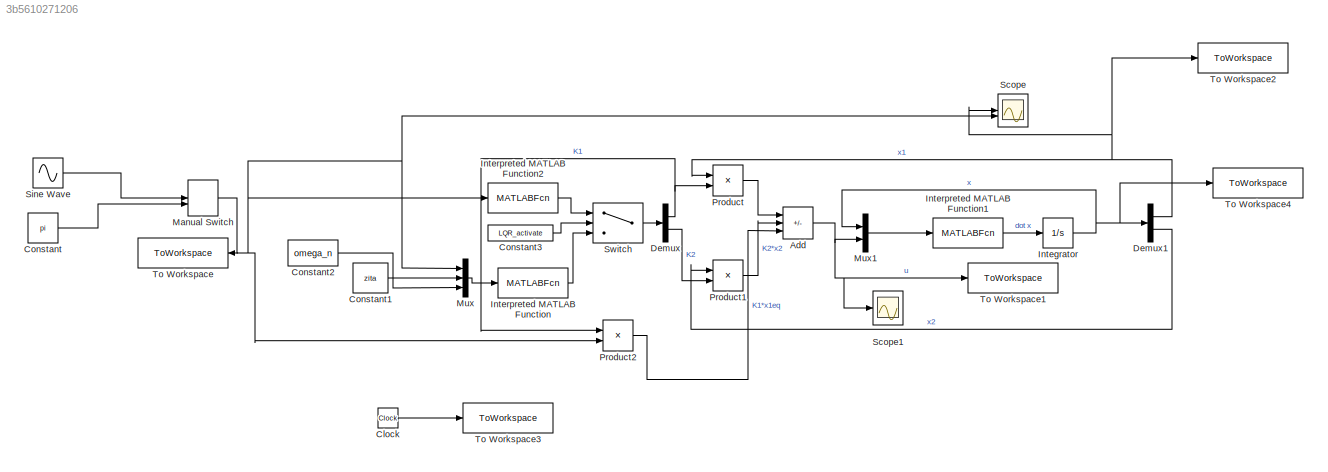
MODEL slx_3b5610271206
KIND model
CONFIG AbsTol = auto
CONFIG EnableMultiTasking = off
CONFIG FixedStep = auto
CONFIG MaxStep = auto
CONFIG MinStep = auto
CONFIG RelTol = 1e-7
CONFIG SampleTimeConstraint = Unconstrained
CONFIG SolverName = VariableStepAuto
CONFIG StartTime = 0.0
CONFIG StopTime = 50
BLOCK [Sum] Add
  IconShape = rectangular
  Inputs = --+
BLOCK [Clock] Clock
BLOCK [Constant] Constant
  Value = pi
BLOCK [Constant] Constant1
  Value = zita
BLOCK [Constant] Constant2
  Value = omega_n
BLOCK [Constant] Constant3
  Value = LQR_activate
BLOCK [Demux] Demux
  Outputs = 2
BLOCK [Demux] Demux1
  Outputs = 2
BLOCK [Integrator] Integrator
BLOCK [MATLABFcn] Interpreted MATLAB Function
  MATLABFcn = GS_compute_gains_PP
  OutputDimensions = 2
BLOCK [MATLABFcn] Interpreted MATLAB Function1
  MATLABFcn = GS_sys
  OutputDimensions = 2
BLOCK [MATLABFcn] Interpreted MATLAB Function2
  MATLABFcn = GS_compute_gains_LQR
  OutputDimensions = 2
BLOCK [ManualSwitch] Manual Switch
  CurrentSetting = 0
BLOCK [Mux] Mux
  DisplayOption = bar
  Inputs = 3
BLOCK [Mux] Mux1
  DisplayOption = bar
  Inputs = 2
BLOCK [Product] Product
BLOCK [Product] Product1
BLOCK [Product] Product2
BLOCK [Scope] Scope
  Floating = off
  NumInputPorts = 2
  ScopeSpecificationString = Simulink.scopes.TimeScopeBlockCfg('CurrentConfiguration', extmgr.ConfigurationSet(extmgr.Configuration('Core','General UI',true),extmgr.Configuration('Core','Source UI',true),extmgr.Configuration('Sources','WiredSimulink',true,'DataLoggingVariableName','ScopeData1'),extmgr.Configuration('Visuals','Time Domain',true,'SerializedDisplays',{struct('MinYLimReal','-3.92491','MaxYLimReal','3.92491','YLab...<+1419ch>
BLOCK [Scope] Scope1
  Floating = off
  NumInputPorts = 1
  ScopeSpecificationString = Simulink.scopes.TimeScopeBlockCfg('CurrentConfiguration', extmgr.ConfigurationSet(extmgr.Configuration('Core','General UI',true),extmgr.Configuration('Core','Source UI',true),extmgr.Configuration('Sources','WiredSimulink',true),extmgr.Configuration('Visuals','Time Domain',true,'SerializedDisplays',{struct('MinYLimReal','-13.8979','MaxYLimReal','38.36756','YLabelReal','','MinYLimMag','0.00000','Max...<+1356ch>
BLOCK [Sin] Sine Wave
  Amplitude = 3.14
  SampleTime = 0
BLOCK [Switch] Switch
  Criteria = u2 > Threshold
  InputSameDT = off
  SaturateOnIntegerOverflow = off
  Threshold = 0.5
BLOCK [ToWorkspace] To Workspace
  FixptAsFi = on
  MaxDataPoints = inf
  SampleTime = -1
  VariableName = r
BLOCK [ToWorkspace] To Workspace1
  FixptAsFi = on
  MaxDataPoints = inf
  SampleTime = -1
  VariableName = u
BLOCK [ToWorkspace] To Workspace2
  FixptAsFi = on
  MaxDataPoints = inf
  SampleTime = -1
  VariableName = y
BLOCK [ToWorkspace] To Workspace3
  FixptAsFi = on
  MaxDataPoints = inf
  SampleTime = -1
  VariableName = t
BLOCK [ToWorkspace] To Workspace4
  FixptAsFi = on
  MaxDataPoints = inf
  SampleTime = -1
  VariableName = x
NET Add:1 -> Mux1:2, Scope1:1, To Workspace1:1
LINE Clock:1 -> To Workspace3:1
LINE Constant1:1 -> Mux:2
LINE Constant2:1 -> Mux:3
LINE Constant3:1 -> Switch:2
LINE Constant:1 -> Manual Switch:2
NET Demux1:1 -> Product:1, Scope:1, To Workspace2:1
LINE Demux1:2 -> Product1:1
NET Demux:1 -> Product2:1, Product:2
LINE Demux:2 -> Product1:2
NET Integrator:1 -> Demux1:1, Mux1:1, To Workspace4:1
LINE Interpreted MATLAB Function1:1 -> Integrator:1
LINE Interpreted MATLAB Function2:1 -> Switch:1
LINE Interpreted MATLAB Function:1 -> Switch:3
NET Manual Switch:1 -> Interpreted MATLAB Function2:1, Mux:1, Product2:2, Scope:2, To Workspace:1
LINE Mux1:1 -> Interpreted MATLAB Function1:1
LINE Mux:1 -> Interpreted MATLAB Function:1
LINE Product1:1 -> Add:2
LINE Product2:1 -> Add:3
LINE Product:1 -> Add:1
LINE Sine Wave:1 -> Manual Switch:1
LINE Switch:1 -> Demux:1
note: NET lines group one-source signal fan-out (src -> all destinations, sorted); 1:1 wires keep LINE
